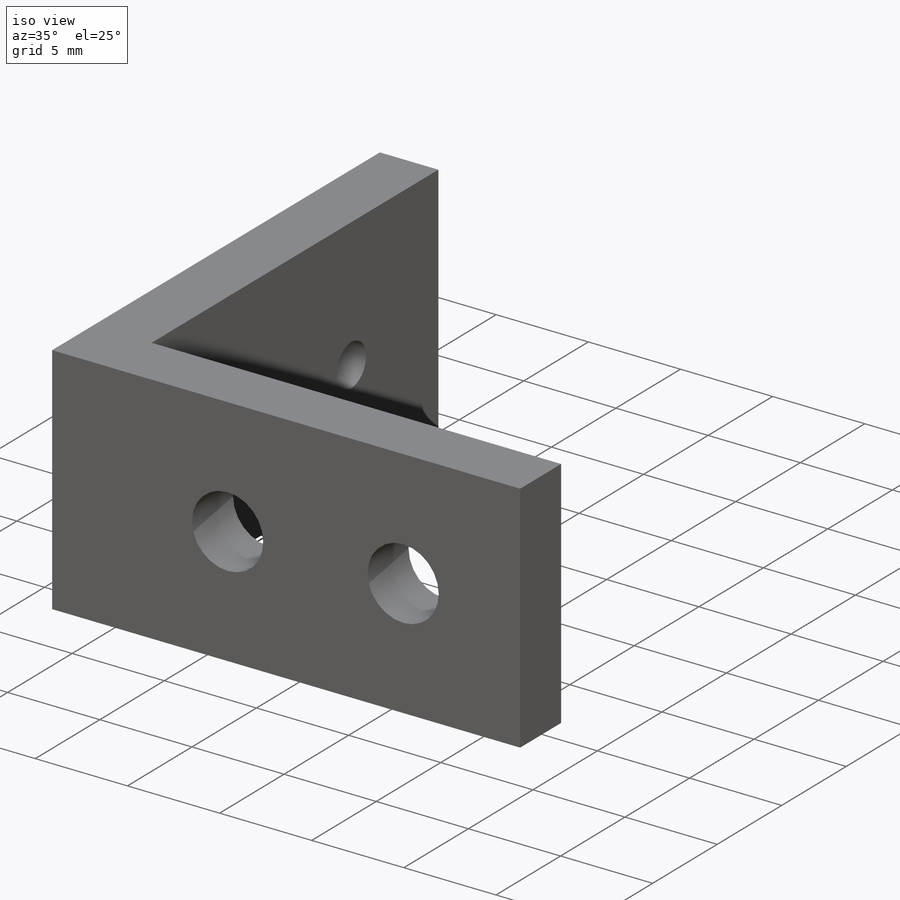
[diagram: iso view]
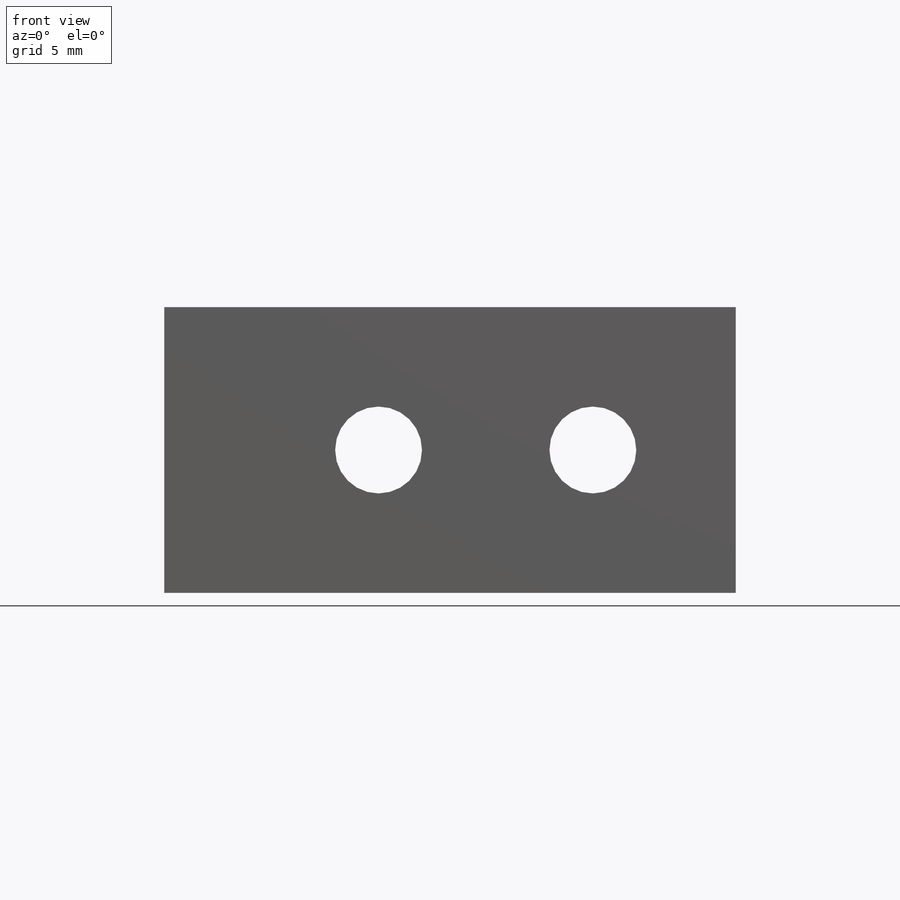
[diagram: front view]
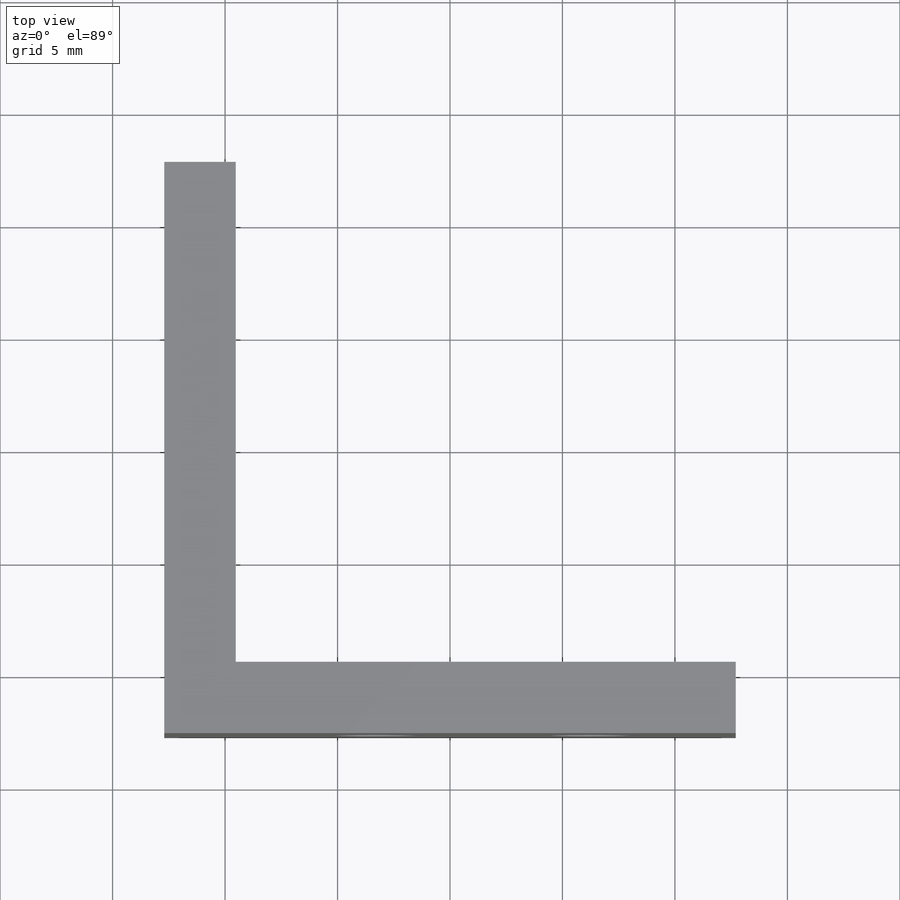
[diagram: top view]
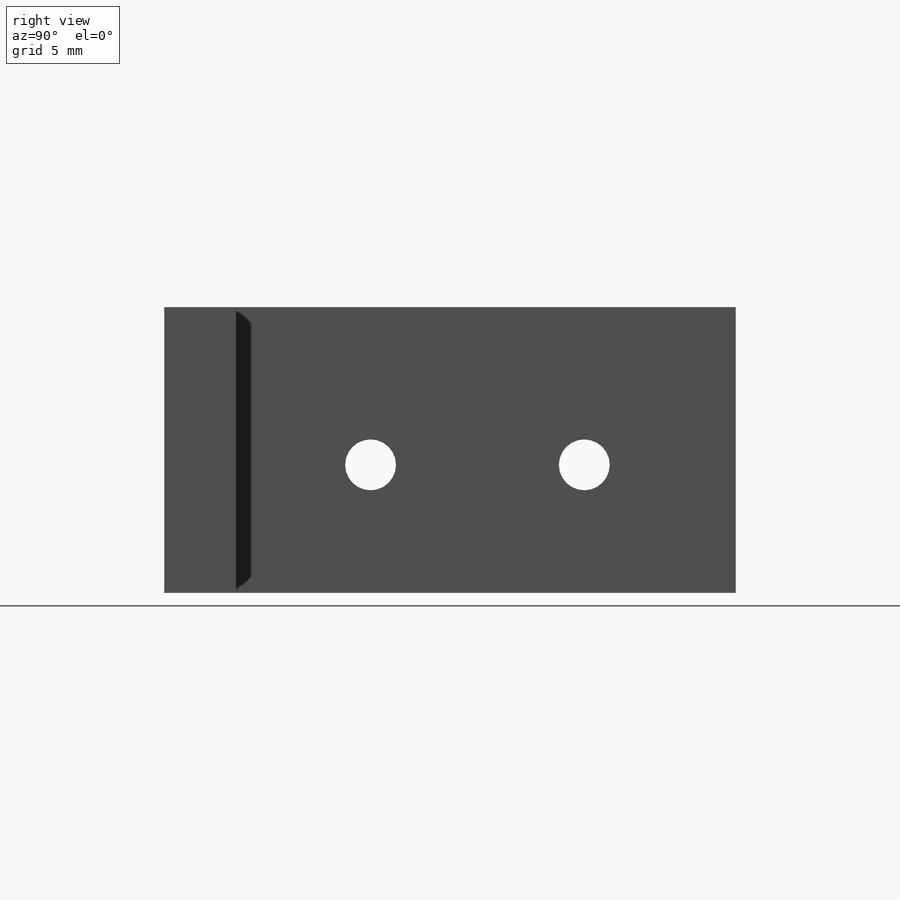
[diagram: right view]
SOLIDWORKS PART (.sldprt)
format: sldprt  version: not decoded by parser v0  size: 217,600 bytes
history: native  units: mm
features: sketch x7, hole x2, material x1, extrude x1 (+12 scaffold rows collapsed)
feature tree (23):
  scaffold x12  (default folders/planes/origin — collapsed)
  material  "Plain Carbon Steel"
  sketch  "Sketch1"  dims[D1=3.175mm D2=3.175mm D3=25.4mm D4=25.4mm]
  extrude  "Boss-Extrude1"  Depth=12.7mm
  sketch  "Sketch3"  dims[D2=6.35mm D3=6.35mm D4=6.35mm D5=9.525mm D1=0.0mm]
  hole  "#24 (0.152) Diameter Hole1"  Diameter=3.8608mm Depth=3.175mm
  sketch  "3DSketch1"
  sketch  "Sketch5"  dims[hole-wizard template sketch: 59 standard entries collapsed; hole parameters kept: c18.Thru Hole Dia.=3.8608mm c18.Thru Hole Depth=3.175mm]
  sketch  "Sketch6"  dims[D1=9.1694mm D2=9.4996mm D3=7.0104mm D4=7.0104mm]
  hole  "Tap Drill for #4-40 Tap1"  Diameter=2.2606mm Depth=25.4mm
  sketch  "3DSketch2"
  sketch  "Sketch7"  dims[hole-wizard template sketch: 59 standard entries collapsed; hole parameters kept: c18.Thru Hole Dia.=2.2606mm c18.Thru Hole Depth=25.4mm]
decode coverage: 8 of 10 modeling features carry decoded parameters
note: ~ marks probable driven/reference dimensions
note: suppression state not decoded; provenance and decode notes live in map.json
